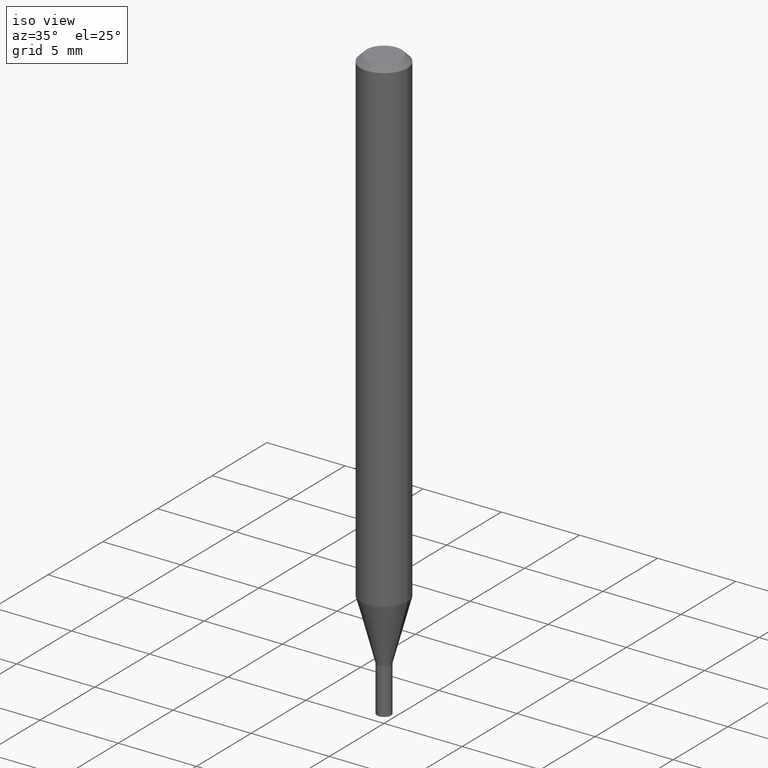
[diagram: clean part render]
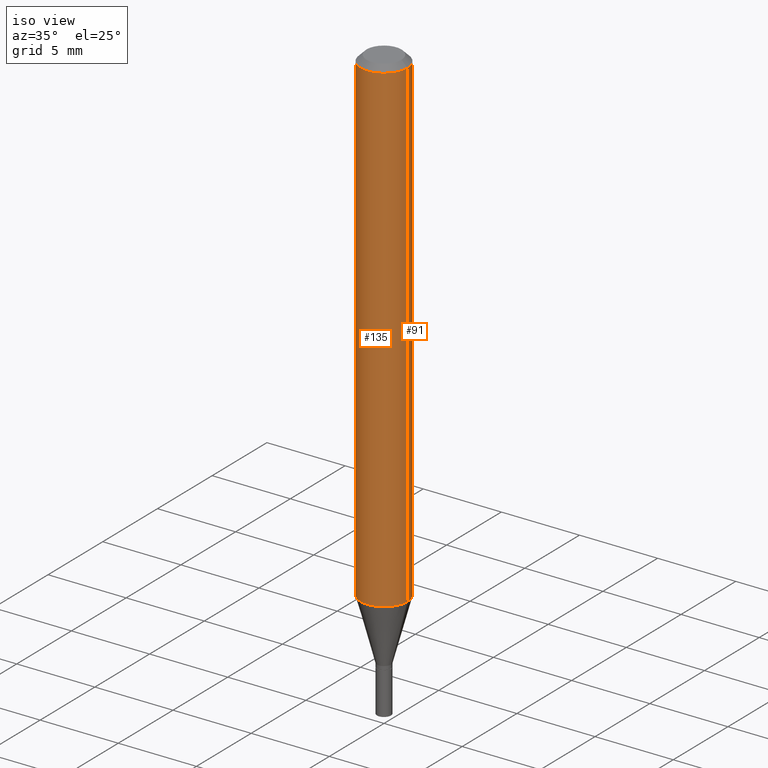
[diagram: same view with one multi-face feature highlighted, each face labeled with its STEP entity id]
A machine part, iso view. The highlighted faces form ONE feature: a constant-radius fillet chain: 2 tangent blend faces with common blend radius 1.4999 mm. The faces share edges in the B-rep.
Their STEP definitions:
[1] entity #91 (Cylinder):
#1 = CARTESIAN_POINT ( 'NONE',  ( 3.007143345765359865E-29, -4.293403722186439259E-15, -1.229679699107027124 ) ) ;
#2 = ORIENTED_EDGE ( 'NONE', *, *, #147, .F. ) ;
#14 = EDGE_CURVE ( 'NONE', #234, #450, #375, .T. ) ;
#35 = DIRECTION ( 'NONE',  ( -2.445468806185136597E-29, 3.491481338843145583E-15, 1.000000000000000000 ) ) ;
#47 = CARTESIAN_POINT ( 'NONE',  ( -0.05904999999999999832, -1.753312485668204070E-15, -0.01499999999999999944 ) ) ;
#52 = ORIENTED_EDGE ( 'NONE', *, *, #217, .F. ) ;
#58 = DIRECTION ( 'NONE',  ( -2.445468806185136877E-29, 3.491481338843145188E-15, 1.000000000000000000 ) ) ;
#65 = CARTESIAN_POINT ( 'NONE',  ( 0.000000000000000000, 0.000000000000000000, 0.000000000000000000 ) ) ;
#79 = FACE_OUTER_BOUND ( 'NONE', #235, .T. ) ;
#81 = CARTESIAN_POINT ( 'NONE',  ( -0.05904999999999999832, -3.873828236720099766E-15, -1.229679699107027124 ) ) ;
#88 = ORIENTED_EDGE ( 'NONE', *, *, #14, .T. ) ;
#91 = ADVANCED_FACE ( 'NONE', ( #79 ), #181, .T. ) ;
#101 = VERTEX_POINT ( 'NONE', #117 ) ;
#102 = CARTESIAN_POINT ( 'NONE',  ( 0.05904999999999999832, -4.123439461173740327E-16, 2.879382386107500220E-30 ) ) ;
#114 = CIRCLE ( 'NONE', #277, 0.05904999999999999832 ) ;
#117 = CARTESIAN_POINT ( 'NONE',  ( 0.05904999999999999832, -4.647161662000212105E-16, -0.01499999999999999944 ) ) ;
#147 = EDGE_CURVE ( 'NONE', #101, #324, #114, .T. ) ;
#160 = LINE ( 'NONE', #293, #463 ) ;
#166 = AXIS2_PLACEMENT_3D ( 'NONE', #1, #218, #179 ) ;
#168 = DIRECTION ( 'NONE',  ( 1.000000000000000000, -6.982962677686266711E-15, 0.000000000000000000 ) ) ;
#169 = EDGE_CURVE ( 'NONE', #450, #324, #160, .T. ) ;
#179 = DIRECTION ( 'NONE',  ( 1.000000000000000000, -6.982962677686265133E-15, 0.000000000000000000 ) ) ;
#181 = CYLINDRICAL_SURFACE ( 'NONE', #210, 0.05904999999999999832 ) ;
#205 = LINE ( 'NONE', #102, #334 ) ;
#210 = AXIS2_PLACEMENT_3D ( 'NONE', #65, #253, #365 ) ;
#217 = EDGE_CURVE ( 'NONE', #234, #101, #205, .T. ) ;
#218 = DIRECTION ( 'NONE',  ( -2.445468806185136597E-29, 3.491481338843145583E-15, 1.000000000000000000 ) ) ;
#234 = VERTEX_POINT ( 'NONE', #454 ) ;
#235 = EDGE_LOOP ( 'NONE', ( #88, #276, #2, #52 ) ) ;
#244 = DIRECTION ( 'NONE',  ( -2.445468806185136877E-29, 3.491481338843145188E-15, 1.000000000000000000 ) ) ;
#253 = DIRECTION ( 'NONE',  ( -2.445468806185136597E-29, 3.491481338843145583E-15, 1.000000000000000000 ) ) ;
#276 = ORIENTED_EDGE ( 'NONE', *, *, #169, .T. ) ;
#277 = AXIS2_PLACEMENT_3D ( 'NONE', #319, #35, #168 ) ;
#293 = CARTESIAN_POINT ( 'NONE',  ( -0.05904999999999999832, 4.195754854663391478E-16, -2.904631170795521892E-30 ) ) ;
#319 = CARTESIAN_POINT ( 'NONE',  ( 3.668203209277705088E-31, -5.237222008264718399E-17, -0.01499999999999999944 ) ) ;
#324 = VERTEX_POINT ( 'NONE', #47 ) ;
#334 = VECTOR ( 'NONE', #244, 39.37007874015748143 ) ;
#365 = DIRECTION ( 'NONE',  ( 1.000000000000000000, -6.982962677686266711E-15, 4.876176775795936353E-29 ) ) ;
#375 = CIRCLE ( 'NONE', #166, 0.05904999999999999832 ) ;
#450 = VERTEX_POINT ( 'NONE', #81 ) ;
#454 = CARTESIAN_POINT ( 'NONE',  ( 0.05904999999999999832, -4.705747668303811812E-15, -1.229679699107027124 ) ) ;
#463 = VECTOR ( 'NONE', #58, 39.37007874015748143 ) ;
[2] entity #135 (Cylinder):
#18 = ORIENTED_EDGE ( 'NONE', *, *, #212, .T. ) ;
#47 = CARTESIAN_POINT ( 'NONE',  ( -0.05904999999999999832, -1.753312485668204070E-15, -0.01499999999999999944 ) ) ;
#58 = DIRECTION ( 'NONE',  ( -2.445468806185136877E-29, 3.491481338843145188E-15, 1.000000000000000000 ) ) ;
#69 = AXIS2_PLACEMENT_3D ( 'NONE', #213, #358, #429 ) ;
#72 = DIRECTION ( 'NONE',  ( -2.445468806185136597E-29, 3.491481338843145583E-15, 1.000000000000000000 ) ) ;
#81 = CARTESIAN_POINT ( 'NONE',  ( -0.05904999999999999832, -3.873828236720099766E-15, -1.229679699107027124 ) ) ;
#101 = VERTEX_POINT ( 'NONE', #117 ) ;
#102 = CARTESIAN_POINT ( 'NONE',  ( 0.05904999999999999832, -4.123439461173740327E-16, 2.879382386107500220E-30 ) ) ;
#107 = EDGE_CURVE ( 'NONE', #324, #101, #280, .T. ) ;
#117 = CARTESIAN_POINT ( 'NONE',  ( 0.05904999999999999832, -4.647161662000212105E-16, -0.01499999999999999944 ) ) ;
#135 = ADVANCED_FACE ( 'NONE', ( #367 ), #292, .T. ) ;
#160 = LINE ( 'NONE', #293, #463 ) ;
#169 = EDGE_CURVE ( 'NONE', #450, #324, #160, .T. ) ;
#204 = EDGE_LOOP ( 'NONE', ( #320, #18, #240, #286 ) ) ;
#205 = LINE ( 'NONE', #102, #334 ) ;
#212 = EDGE_CURVE ( 'NONE', #450, #234, #430, .T. ) ;
#213 = CARTESIAN_POINT ( 'NONE',  ( 3.007143345765359865E-29, -4.293403722186439259E-15, -1.229679699107027124 ) ) ;
#217 = EDGE_CURVE ( 'NONE', #234, #101, #205, .T. ) ;
#222 = DIRECTION ( 'NONE',  ( 1.000000000000000000, -6.982962677686266711E-15, 0.000000000000000000 ) ) ;
#234 = VERTEX_POINT ( 'NONE', #454 ) ;
#240 = ORIENTED_EDGE ( 'NONE', *, *, #217, .T. ) ;
#244 = DIRECTION ( 'NONE',  ( -2.445468806185136877E-29, 3.491481338843145188E-15, 1.000000000000000000 ) ) ;
#268 = AXIS2_PLACEMENT_3D ( 'NONE', #283, #279, #426 ) ;
#279 = DIRECTION ( 'NONE',  ( -2.445468806185136597E-29, 3.491481338843145583E-15, 1.000000000000000000 ) ) ;
#280 = CIRCLE ( 'NONE', #289, 0.05904999999999999832 ) ;
#283 = CARTESIAN_POINT ( 'NONE',  ( 0.000000000000000000, 0.000000000000000000, 0.000000000000000000 ) ) ;
#286 = ORIENTED_EDGE ( 'NONE', *, *, #107, .F. ) ;
#289 = AXIS2_PLACEMENT_3D ( 'NONE', #456, #72, #222 ) ;
#292 = CYLINDRICAL_SURFACE ( 'NONE', #268, 0.05904999999999999832 ) ;
#293 = CARTESIAN_POINT ( 'NONE',  ( -0.05904999999999999832, 4.195754854663391478E-16, -2.904631170795521892E-30 ) ) ;
#320 = ORIENTED_EDGE ( 'NONE', *, *, #169, .F. ) ;
#324 = VERTEX_POINT ( 'NONE', #47 ) ;
#334 = VECTOR ( 'NONE', #244, 39.37007874015748143 ) ;
#358 = DIRECTION ( 'NONE',  ( -2.445468806185136597E-29, 3.491481338843145583E-15, 1.000000000000000000 ) ) ;
#367 = FACE_OUTER_BOUND ( 'NONE', #204, .T. ) ;
#426 = DIRECTION ( 'NONE',  ( 1.000000000000000000, -6.982962677686266711E-15, 4.876176775795936353E-29 ) ) ;
#429 = DIRECTION ( 'NONE',  ( 1.000000000000000000, -6.982962677686265133E-15, 0.000000000000000000 ) ) ;
#430 = CIRCLE ( 'NONE', #69, 0.05904999999999999832 ) ;
#450 = VERTEX_POINT ( 'NONE', #81 ) ;
#454 = CARTESIAN_POINT ( 'NONE',  ( 0.05904999999999999832, -4.705747668303811812E-15, -1.229679699107027124 ) ) ;
#456 = CARTESIAN_POINT ( 'NONE',  ( 3.668203209277705088E-31, -5.237222008264718399E-17, -0.01499999999999999944 ) ) ;
#463 = VECTOR ( 'NONE', #58, 39.37007874015748143 ) ;